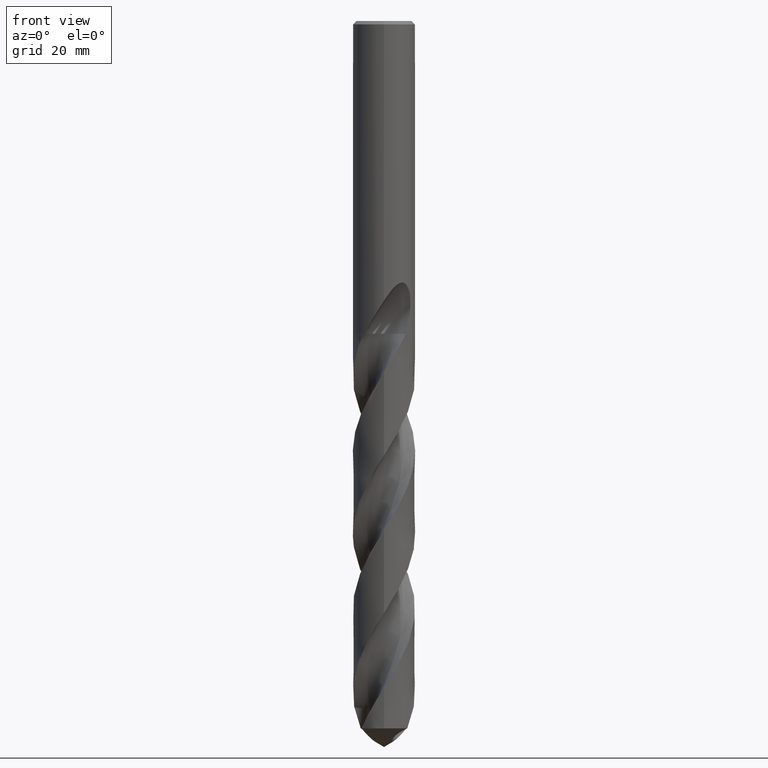
[diagram: clean part render]
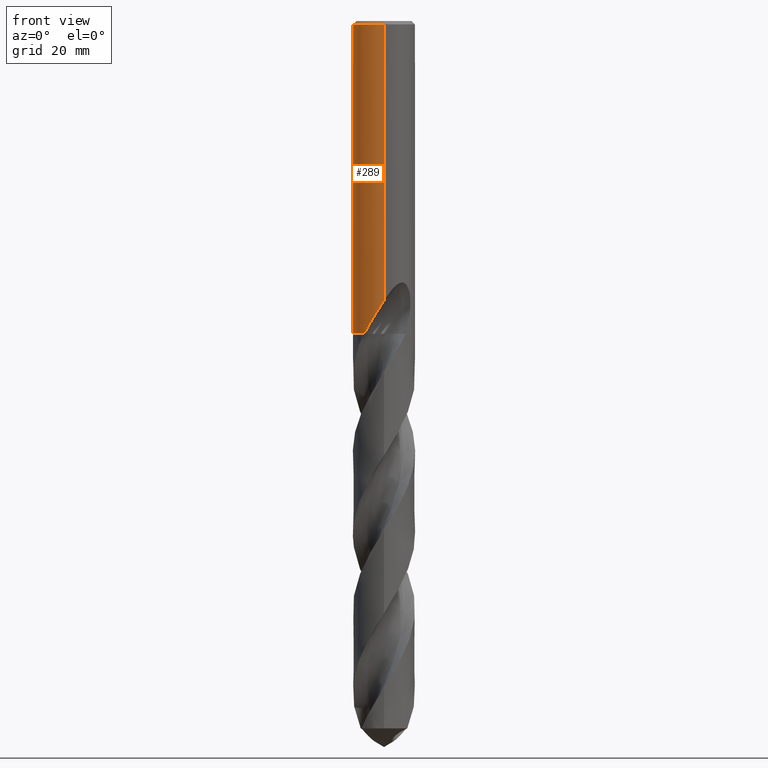
[diagram: same view with one face highlighted and labeled with its STEP entity id]
A machine part, front view. The second image highlights one B-rep face of the part: STEP entity #289.
In plain terms, the highlighted cylindrical surface (edge-blend (fillet) strip) has radius 7.25 mm, axis along (-0, -0, 1).
Its self-contained STEP definition (entity closure, byte-faithful):
#277=EDGE_CURVE('',#559,#427,#755,.T.);
#279=EDGE_CURVE('',#589,#543,#757,.T.);
#285=VERTEX_POINT('',#764);
#289=ADVANCED_FACE('',(#768),#769,.T.);
#299=VERTEX_POINT('',#779);
#307=EDGE_CURVE('',#325,#543,#787,.T.);
#325=VERTEX_POINT('',#807);
#335=VERTEX_POINT('',#817);
#341=EDGE_CURVE('',#607,#549,#823,.T.);
#351=VERTEX_POINT('',#834);
#359=EDGE_CURVE('',#419,#335,#842,.T.);
#377=EDGE_CURVE('',#335,#559,#862,.T.);
#389=VERTEX_POINT('',#876);
#391=EDGE_CURVE('',#589,#607,#878,.T.);
#399=VERTEX_POINT('',#886);
#401=EDGE_CURVE('',#389,#419,#888,.T.);
#419=VERTEX_POINT('',#907);
#427=VERTEX_POINT('',#917);
#453=EDGE_CURVE('',#285,#299,#945,.T.);
#467=EDGE_CURVE('',#427,#399,#961,.T.);
#483=EDGE_CURVE('',#549,#285,#978,.T.);
#531=EDGE_CURVE('',#671,#325,#1032,.T.);
#543=VERTEX_POINT('',#1046);
#549=VERTEX_POINT('',#1052);
#559=VERTEX_POINT('',#1064);
#579=EDGE_CURVE('',#351,#389,#1087,.T.);
#589=VERTEX_POINT('',#1097);
#607=VERTEX_POINT('',#1115);
#663=EDGE_CURVE('',#399,#671,#1177,.T.);
#669=EDGE_CURVE('',#299,#351,#1184,.T.);
#671=VERTEX_POINT('',#1186);
#755=ELLIPSE('',#1300,8.08323113231074,7.25);
#757=CIRCLE('',#1303,7.25);
#764=CARTESIAN_POINT('',(0.0,7.25,-0.799999999999997));
#768=FACE_OUTER_BOUND('',#1341,.T.);
#769=CYLINDRICAL_SURFACE('',#1342,7.25);
#779=CARTESIAN_POINT('',(5.21400732790171E-015,7.25,-46.0232688117743));
#787=B_SPLINE_CURVE_WITH_KNOTS('',3,(#1702,#1703,#1704,#1705),.UNSPECIFIED.,.F.,.F.,(4,4),(0.0,4.16145797138082),.UNSPECIFIED.);
#807=CARTESIAN_POINT('',(-5.89890568393664,4.21490352582595,-68.835043342993));
#817=CARTESIAN_POINT('',(-1.76789376344226E-015,7.25,-46.5000801551881));
#823=LINE('',#1951,#1952);
#834=CARTESIAN_POINT('',(-0.486378944383044,7.23366681030173,-45.6432837483006));
#842=B_SPLINE_CURVE_WITH_KNOTS('',3,(#2120,#2121,#2122,#2123,#2124,#2125,#2126,#2127,#2128,#2129,#2130,#2131,#2132,#2133),.UNSPECIFIED.,.F.,.F.,(4,2,2,2,2,2,4),(3.12598078426012,3.57242219241229,4.01886360056445,4.46530500871661,4.91132129431049,5.35733757990438,5.80451943872426),.UNSPECIFIED.);
#862=LINE('',#2577,#2578);
#876=CARTESIAN_POINT('',(-0.562333990228013,7.22815885848078,-45.3171221986971));
#878=B_SPLINE_CURVE_WITH_KNOTS('',3,(#2601,#2602,#2603,#2604,#2605,#2606,#2607,#2608,#2609,#2610,#2611,#2612,#2613,#2614,#2615,#2616,#2617,#2618,#2619,#2620,#2621,#2622,#2623,#2624,#2625,#2626,#2627,#2628,#2629,#2630),.UNSPECIFIED.,.F.,.F.,(4,2,2,2,2,2,2,2,2,2,2,2,2,2,4),(0.0,3.54844658038938,5.48763761791171,7.24460036638722,9.28608715965889,11.7381097819239,13.8610708390396,14.8239670089668,15.5277714710866,16.1938057539512,17.0387541643148,18.2749855397428,20.0324073018883,21.182137492714,22.3904148931581),.UNSPECIFIED.);
#886=CARTESIAN_POINT('',(8.69674988129566E-017,7.25,-48.0310253601033));
#888=CIRCLE('',#2643,7.25);
#907=CARTESIAN_POINT('',(-1.0350734039088,7.17573153403335,-45.3171221986971));
#917=CARTESIAN_POINT('',(-1.337052752443,7.12564312446144,-47.3720803908795));
#945=LINE('',#3151,#3152);
#961=B_SPLINE_CURVE_WITH_KNOTS('',3,(#3184,#3185,#3186,#3187,#3188,#3189,#3190,#3191,#3192,#3193,#3194,#3195,#3196,#3197,#3198,#3199),.UNSPECIFIED.,.F.,.F.,(4,2,2,2,2,2,2,4),(5.849860461886,6.15776949937088,6.46574711276431,6.77372472615775,7.08170233955119,7.38967995294462,7.69744390712753,8.00520786131043),.UNSPECIFIED.);
#978=CIRCLE('',#3240,7.25);
#1032=B_SPLINE_CURVE_WITH_KNOTS('',3,(#4497,#4498,#4499,#4500,#4501,#4502,#4503,#4504,#4505,#4506,#4507,#4508,#4509,#4510,#4511,#4512,#4513,#4514,#4515,#4516,#4517,#4518,#4519,#4520,#4521,#4522,#4523,#4524,#4525,#4526),.UNSPECIFIED.,.F.,.F.,(4,2,2,2,2,2,2,2,2,2,2,2,2,2,4),(0.0,3.54844658038938,5.48763761791159,7.24460036638689,9.28608715965892,11.7381097819245,13.8610708390407,14.8239670089681,15.5277714710882,16.1938057539532,17.0387541643171,18.2749855397463,20.0324073018938,21.1821374927204,22.3904148931655),.UNSPECIFIED.);
#1046=CARTESIAN_POINT('',(-5.0406308264731,5.21100190665951,-72.8));
#1052=CARTESIAN_POINT('',(8.87839606521224E-016,-7.25,-0.799999999999997));
#1064=CARTESIAN_POINT('',(-3.70594869918881E-015,7.25,-46.7128911336578));
#1087=B_SPLINE_CURVE_WITH_KNOTS('',3,(#5653,#5654,#5655,#5656,#5657,#5658,#5659,#5660,#5661,#5662,#5663,#5664,#5665,#5666,#5667,#5668,#5669,#5670,#5671,#5672,#5673,#5674,#5675,#5676,#5677,#5678,#5679),.UNSPECIFIED.,.F.,.F.,(4,2,3,2,2,2,2,2,2,2,2,2,4),(-0.542005165388285,-0.271002582694143,0.0,0.271002582694142,0.542005165388284,0.813279492373751,1.08455381935922,1.35537592794296,1.6261980365267,1.89715366170137,2.16810928687604,2.4390649120507,2.71002053722537),.UNSPECIFIED.);
#1097=CARTESIAN_POINT('',(-4.617428216597,-5.58944153422986,-72.8));
#1115=CARTESIAN_POINT('',(2.21289636327627E-012,-7.25000000000001,-65.0984235571789));
#1177=LINE('',#6129,#6130);
#1184=B_SPLINE_CURVE_WITH_KNOTS('',3,(#6140,#6141,#6142,#6143,#6144,#6145,#6146,#6147,#6148,#6149,#6150,#6151,#6152,#6153,#6154,#6155,#6156,#6157,#6158,#6159,#6160,#6161,#6162,#6163,#6164,#6165,#6166),.UNSPECIFIED.,.F.,.F.,(4,2,3,2,2,2,2,2,2,2,2,2,4),(-0.542005165388285,-0.271002582694143,0.0,0.271002582694142,0.542005165388284,0.813279492373751,1.08455381935922,1.35537592794296,1.6261980365267,1.89715366170137,2.16810928687604,2.4390649120507,2.71002053722537),.UNSPECIFIED.);
#1186=CARTESIAN_POINT('',(-2.21467272011567E-012,7.25,-65.0984235571789));
#1300=AXIS2_PLACEMENT_3D('',#7116,#7117,#7118);
#1303=AXIS2_PLACEMENT_3D('',#7119,#7120,#7121);
#1341=EDGE_LOOP('',(#7132,#7133,#7134,#7135,#7136,#7137,#7138,#7139,#7140,#7141,#7142,#7143,#7144,#7145,#7146));
#1342=AXIS2_PLACEMENT_3D('',#7147,#7148,#7149);
#1702=CARTESIAN_POINT('',(-5.89890568398927,4.21490352575229,-68.8350433430219));
#1703=CARTESIAN_POINT('',(-5.66546679523584,4.54160945847847,-70.1628091404852));
#1704=CARTESIAN_POINT('',(-5.38417504793869,4.87868969031526,-71.4984422610641));
#1705=CARTESIAN_POINT('',(-5.0406308264731,5.21100190665951,-72.8));
#1951=CARTESIAN_POINT('',(8.87839606521224E-016,-7.25,-61.4));
#1952=VECTOR('',#7195,1.0);
#2120=CARTESIAN_POINT('',(-0.944882962919552,7.18816361711281,-44.8731505021767));
#2121=CARTESIAN_POINT('',(-1.00531916080331,7.18021928981669,-45.0189012482723));
#2122=CARTESIAN_POINT('',(-1.03510901790186,7.17572639675303,-45.1774880580154));
#2123=CARTESIAN_POINT('',(-1.03510901790186,7.17572639675303,-45.4751156634502));
#2124=CARTESIAN_POINT('',(-1.00531916080331,7.18021928981669,-45.6337024731932));
#2125=CARTESIAN_POINT('',(-0.884446765035806,7.19610794440894,-45.9252039653846));
#2126=CARTESIAN_POINT('',(-0.793375351811161,7.20723142525308,-46.0581380380379));
#2127=CARTESIAN_POINT('',(-0.583437843733108,7.22725455224771,-46.2679550453224));
#2128=CARTESIAN_POINT('',(-0.450540548175303,7.2374563815644,-46.3589265208356));
#2129=CARTESIAN_POINT('',(-0.159170906672212,7.24971904851264,-46.4796387136468));
#2130=CARTESIAN_POINT('',(-0.000683380668176969,7.25152417943162,-46.5093686300866));
#2131=CARTESIAN_POINT('',(0.296987327064988,7.24544806039491,-46.5093686300866));
#2132=CARTESIAN_POINT('',(0.455654578620942,7.23714476621408,-46.4794995549297));
#2133=CARTESIAN_POINT('',(0.60138829246746,7.22501433366627,-46.4190267690348));
#2577=CARTESIAN_POINT('',(-8.87839606521224E-016,7.25,-61.4));
#2578=VECTOR('',#7222,1.0);
#2601=CARTESIAN_POINT('',(-4.617428216597,-5.58944153422986,-72.8));
#2602=CARTESIAN_POINT('',(-4.13937635557394,-5.98435936968204,-71.7927468581112));
#2603=CARTESIAN_POINT('',(-3.58992270589019,-6.33531234500395,-70.8534785716));
#2604=CARTESIAN_POINT('',(-2.63184174914676,-6.76562305248206,-69.2841493430898));
#2605=CARTESIAN_POINT('',(-2.28689840390779,-6.88947011461468,-68.7316917466561));
#2606=CARTESIAN_POINT('',(-1.61905154704012,-7.07458095987604,-67.6621426227853));
#2607=CARTESIAN_POINT('',(-1.29911868063879,-7.13998030606446,-67.1500185644935));
#2608=CARTESIAN_POINT('',(-0.606544672567688,-7.234343622989,-66.0461844664534));
#2609=CARTESIAN_POINT('',(-0.228105384609302,-7.25646638886107,-65.4458162058839));
#2610=CARTESIAN_POINT('',(0.612272501000281,-7.23864703704895,-64.1615636660833));
#2611=CARTESIAN_POINT('',(1.11055916340271,-7.1838815834668,-63.4308112036628));
#2612=CARTESIAN_POINT('',(2.07099252469869,-6.96294680603812,-62.2266473719668));
#2613=CARTESIAN_POINT('',(2.6019714726075,-6.79481670233259,-61.6395331549284));
#2614=CARTESIAN_POINT('',(3.40583290236086,-6.40627957200327,-61.0894525441869));
#2615=CARTESIAN_POINT('',(3.67207221721475,-6.25951337217414,-60.9534332505876));
#2616=CARTESIAN_POINT('',(4.13859326847605,-5.95731808566675,-60.8489645813224));
#2617=CARTESIAN_POINT('',(4.32994370364985,-5.81969345909079,-60.8470317208443));
#2618=CARTESIAN_POINT('',(4.68634745228596,-5.53621475879936,-60.9385366267836));
#2619=CARTESIAN_POINT('',(4.84222196941276,-5.39929896628917,-61.0243171863235));
#2620=CARTESIAN_POINT('',(5.15943004938234,-5.09925473934298,-61.2927025840205));
#2621=CARTESIAN_POINT('',(5.30618536998462,-4.94376303626702,-61.4908553788925));
#2622=CARTESIAN_POINT('',(5.60678798656216,-4.60423578391243,-62.0334558650061));
#2623=CARTESIAN_POINT('',(5.75046756064831,-4.41934076066048,-62.4359063512971));
#2624=CARTESIAN_POINT('',(6.02063753840335,-4.04809536876017,-63.5618962990456));
#2625=CARTESIAN_POINT('',(6.11830055663954,-3.88997832031718,-64.3638047521264));
#2626=CARTESIAN_POINT('',(6.16659469416509,-3.81272973140763,-65.847777612086));
#2627=CARTESIAN_POINT('',(6.1552144344166,-3.83159909073805,-66.4386657207588));
#2628=CARTESIAN_POINT('',(6.07491478731915,-3.95774959801274,-67.6378687355709));
#2629=CARTESIAN_POINT('',(6.0032299556517,-4.06889803943182,-68.2416703078091));
#2630=CARTESIAN_POINT('',(5.89890568393663,-4.21490352582595,-68.835043342993));
#2643=AXIS2_PLACEMENT_3D('',#7263,#7264,#7265);
#3151=CARTESIAN_POINT('',(-8.87839606521224E-016,7.25,-61.4));
#3152=VECTOR('',#7340,1.0);
#3184=CARTESIAN_POINT('',(-1.37959567331625,7.11752876904387,-47.3118471321033));
#3185=CARTESIAN_POINT('',(-1.31987953841072,7.12910359001709,-47.400592130849));
#3186=CARTESIAN_POINT('',(-1.25218373916195,7.14141952080462,-47.4820529042455));
#3187=CARTESIAN_POINT('',(-1.10800822315806,7.16520460584611,-47.6262539905264));
#3188=CARTESIAN_POINT('',(-1.02654002413945,7.1775154133935,-47.6939776488091));
#3189=CARTESIAN_POINT('',(-0.849025167976595,7.20067137111179,-47.8134612161857));
#3190=CARTESIAN_POINT('',(-0.752981229844161,7.21149470416405,-47.8652293918837));
#3191=CARTESIAN_POINT('',(-0.552437560095781,7.22962304284126,-47.9484666893911));
#3192=CARTESIAN_POINT('',(-0.447771796720019,7.23692784469342,-47.9800017826115));
#3193=CARTESIAN_POINT('',(-0.237064448289829,7.24689068901932,-48.0214096938983));
#3194=CARTESIAN_POINT('',(-0.131020588262971,7.24954291784748,-48.0312723335086));
#3195=CARTESIAN_POINT('',(0.0742250303791588,7.25034584964577,-48.0312723335086));
#3196=CARTESIAN_POINT('',(0.180215603267349,7.24852614452738,-48.0214231311406));
#3197=CARTESIAN_POINT('',(0.390849889662505,7.24022411913528,-47.9800516221809));
#3198=CARTESIAN_POINT('',(0.495495780910467,7.23374763990943,-47.948539231802));
#3199=CARTESIAN_POINT('',(0.595758662558768,7.22548071867791,-47.9069419872344));
#3240=AXIS2_PLACEMENT_3D('',#7389,#7390,#7391);
#4497=CARTESIAN_POINT('',(4.617428216597,5.58944153422985,-72.8));
#4498=CARTESIAN_POINT('',(4.13937635557394,5.98435936968204,-71.7927468581112));
#4499=CARTESIAN_POINT('',(3.58992270589022,6.33531234500394,-70.8534785716));
#4500=CARTESIAN_POINT('',(2.63184174914677,6.76562305248206,-69.2841493430899));
#4501=CARTESIAN_POINT('',(2.2868984039078,6.88947011461468,-68.7316917466561));
#4502=CARTESIAN_POINT('',(1.61905154704013,7.07458095987604,-67.6621426227853));
#4503=CARTESIAN_POINT('',(1.2991186806388,7.13998030606446,-67.1500185644935));
#4504=CARTESIAN_POINT('',(0.60654467256756,7.23434362298902,-66.0461844664532));
#4505=CARTESIAN_POINT('',(0.228105384609249,7.25646638886106,-65.4458162058838));
#4506=CARTESIAN_POINT('',(-0.612272501000251,7.23864703704895,-64.1615636660833));
#4507=CARTESIAN_POINT('',(-1.11055916340271,7.1838815834668,-63.4308112036627));
#4508=CARTESIAN_POINT('',(-2.07099252469873,6.96294680603811,-62.2266473719667));
#4509=CARTESIAN_POINT('',(-2.60197147260752,6.79481670233258,-61.6395331549284));
#4510=CARTESIAN_POINT('',(-3.40583290236082,6.40627957200328,-61.0894525441869));
#4511=CARTESIAN_POINT('',(-3.67207221721474,6.25951337217414,-60.9534332505875));
#4512=CARTESIAN_POINT('',(-4.13859326847614,5.95731808566669,-60.8489645813224));
#4513=CARTESIAN_POINT('',(-4.3299437036499,5.81969345909075,-60.8470317208443));
#4514=CARTESIAN_POINT('',(-4.68634745228595,5.53621475879937,-60.9385366267836));
#4515=CARTESIAN_POINT('',(-4.84222196941274,5.3992989662892,-61.0243171863234));
#4516=CARTESIAN_POINT('',(-5.15943004938237,5.09925473934296,-61.2927025840205));
#4517=CARTESIAN_POINT('',(-5.30618536998465,4.94376303626699,-61.4908553788926));
#4518=CARTESIAN_POINT('',(-5.60678798656225,4.60423578391233,-62.0334558650063));
#4519=CARTESIAN_POINT('',(-5.75046756064837,4.4193407606604,-62.4359063512974));
#4520=CARTESIAN_POINT('',(-6.02063753840331,4.04809536876025,-63.5618962990454));
#4521=CARTESIAN_POINT('',(-6.11830055663954,3.88997832031718,-64.3638047521261));
#4522=CARTESIAN_POINT('',(-6.1665946941651,3.81272973140762,-65.847777612086));
#4523=CARTESIAN_POINT('',(-6.1552144344166,3.83159909073805,-66.4386657207588));
#4524=CARTESIAN_POINT('',(-6.07491478731916,3.95774959801273,-67.6378687355709));
#4525=CARTESIAN_POINT('',(-6.00322995565171,4.0688980394318,-68.2416703078091));
#4526=CARTESIAN_POINT('',(-5.89890568393664,4.21490352582594,-68.8350433429929));
#5653=CARTESIAN_POINT('',(0.66497797756601,7.21943933344912,-44.8134514375689));
#5654=CARTESIAN_POINT('',(0.728702547670773,7.21356970371856,-44.8772087372233));
#5655=CARTESIAN_POINT('',(0.783982100534131,7.2075817465801,-44.9579643148021));
#5656=CARTESIAN_POINT('',(0.857333655844048,7.19922506783456,-45.1350105458368));
#5657=CARTESIAN_POINT('',(0.875400981188567,7.19695582327237,-45.2313078183554));
#5658=CARTESIAN_POINT('',(0.875400981188567,7.19695582327237,-45.3216420125868));
#5659=CARTESIAN_POINT('',(0.875400981188567,7.19695582327237,-45.4119762068182));
#5660=CARTESIAN_POINT('',(0.857333655844048,7.19922506783456,-45.5082734793367));
#5661=CARTESIAN_POINT('',(0.783982100534131,7.2075817465801,-45.6853197103715));
#5662=CARTESIAN_POINT('',(0.728702547670773,7.21356970371856,-45.7660752879503));
#5663=CARTESIAN_POINT('',(0.601189508482974,7.22531484887402,-45.8936538190565));
#5664=CARTESIAN_POINT('',(0.520401032221552,7.23184306320286,-45.9489915531223));
#5665=CARTESIAN_POINT('',(0.343275103027133,7.24241213467872,-46.022425232181));
#5666=CARTESIAN_POINT('',(0.246930089740288,7.24635785555988,-46.0405166027747));
#5667=CARTESIAN_POINT('',(0.0662733965927272,7.25025911526719,-46.0405166027747));
#5668=CARTESIAN_POINT('',(-0.0300020000666073,7.25047874367655,-46.0224791383375));
#5669=CARTESIAN_POINT('',(-0.20708995414585,7.24758276140915,-45.9491359731574));
#5670=CARTESIAN_POINT('',(-0.287904787319242,7.24456290439615,-45.8938320176603));
#5671=CARTESIAN_POINT('',(-0.41554875845194,7.23836335758329,-45.7662300527366));
#5672=CARTESIAN_POINT('',(-0.470887117358976,7.23478533701256,-45.685405538883));
#5673=CARTESIAN_POINT('',(-0.544287865416768,7.22963375793717,-45.5082726273809));
#5674=CARTESIAN_POINT('',(-0.562348199187247,7.22815775304267,-45.4119605543117));
#5675=CARTESIAN_POINT('',(-0.562348199187247,7.22815775304267,-45.2313234708619));
#5676=CARTESIAN_POINT('',(-0.544287865416768,7.22963375793717,-45.1350113977926));
#5677=CARTESIAN_POINT('',(-0.470887117358976,7.23478533701256,-44.9578784862905));
#5678=CARTESIAN_POINT('',(-0.41554875845194,7.23836335758329,-44.877053972437));
#5679=CARTESIAN_POINT('',(-0.351711044491071,7.24146389490295,-44.8132372667566));
#6129=CARTESIAN_POINT('',(-8.87839606521224E-016,7.25,-61.4));
#6130=VECTOR('',#7604,1.0);
#6140=CARTESIAN_POINT('',(0.66497797756601,7.21943933344912,-44.8134514375689));
#6141=CARTESIAN_POINT('',(0.728702547670773,7.21356970371856,-44.8772087372233));
#6142=CARTESIAN_POINT('',(0.783982100534131,7.2075817465801,-44.9579643148021));
#6143=CARTESIAN_POINT('',(0.857333655844048,7.19922506783456,-45.1350105458368));
#6144=CARTESIAN_POINT('',(0.875400981188567,7.19695582327237,-45.2313078183554));
#6145=CARTESIAN_POINT('',(0.875400981188567,7.19695582327237,-45.3216420125868));
#6146=CARTESIAN_POINT('',(0.875400981188567,7.19695582327237,-45.4119762068182));
#6147=CARTESIAN_POINT('',(0.857333655844048,7.19922506783456,-45.5082734793367));
#6148=CARTESIAN_POINT('',(0.783982100534131,7.2075817465801,-45.6853197103715));
#6149=CARTESIAN_POINT('',(0.728702547670773,7.21356970371856,-45.7660752879503));
#6150=CARTESIAN_POINT('',(0.601189508482974,7.22531484887402,-45.8936538190565));
#6151=CARTESIAN_POINT('',(0.520401032221552,7.23184306320286,-45.9489915531223));
#6152=CARTESIAN_POINT('',(0.343275103027133,7.24241213467872,-46.022425232181));
#6153=CARTESIAN_POINT('',(0.246930089740288,7.24635785555988,-46.0405166027747));
#6154=CARTESIAN_POINT('',(0.0662733965927272,7.25025911526719,-46.0405166027747));
#6155=CARTESIAN_POINT('',(-0.0300020000666073,7.25047874367655,-46.0224791383375));
#6156=CARTESIAN_POINT('',(-0.20708995414585,7.24758276140915,-45.9491359731574));
#6157=CARTESIAN_POINT('',(-0.287904787319242,7.24456290439615,-45.8938320176603));
#6158=CARTESIAN_POINT('',(-0.41554875845194,7.23836335758329,-45.7662300527366));
#6159=CARTESIAN_POINT('',(-0.470887117358976,7.23478533701256,-45.685405538883));
#6160=CARTESIAN_POINT('',(-0.544287865416768,7.22963375793717,-45.5082726273809));
#6161=CARTESIAN_POINT('',(-0.562348199187247,7.22815775304267,-45.4119605543117));
#6162=CARTESIAN_POINT('',(-0.562348199187247,7.22815775304267,-45.2313234708619));
#6163=CARTESIAN_POINT('',(-0.544287865416768,7.22963375793717,-45.1350113977926));
#6164=CARTESIAN_POINT('',(-0.470887117358976,7.23478533701256,-44.9578784862905));
#6165=CARTESIAN_POINT('',(-0.41554875845194,7.23836335758329,-44.877053972437));
#6166=CARTESIAN_POINT('',(-0.351711044491071,7.24146389490295,-44.8132372667566));
#7116=CARTESIAN_POINT('',(0.0,0.0,-46.7128911336578));
#7117=DIRECTION('',(-0.442195774284071,0.0,0.896918556617774));
#7118=DIRECTION('',(0.896918556617774,-0.0,0.442195774284071));
#7119=CARTESIAN_POINT('',(0.0,0.0,-72.8));
#7120=DIRECTION('',(0.0,0.0,-1.0));
#7121=DIRECTION('',(0.0,1.0,0.0));
#7132=ORIENTED_EDGE('',*,*,#453,.T.);
#7133=ORIENTED_EDGE('',*,*,#669,.T.);
#7134=ORIENTED_EDGE('',*,*,#579,.T.);
#7135=ORIENTED_EDGE('',*,*,#401,.T.);
#7136=ORIENTED_EDGE('',*,*,#359,.T.);
#7137=ORIENTED_EDGE('',*,*,#377,.T.);
#7138=ORIENTED_EDGE('',*,*,#277,.T.);
#7139=ORIENTED_EDGE('',*,*,#467,.T.);
#7140=ORIENTED_EDGE('',*,*,#663,.T.);
#7141=ORIENTED_EDGE('',*,*,#531,.T.);
#7142=ORIENTED_EDGE('',*,*,#307,.T.);
#7143=ORIENTED_EDGE('',*,*,#279,.F.);
#7144=ORIENTED_EDGE('',*,*,#391,.T.);
#7145=ORIENTED_EDGE('',*,*,#341,.T.);
#7146=ORIENTED_EDGE('',*,*,#483,.T.);
#7147=CARTESIAN_POINT('',(0.0,0.0,-61.4));
#7148=DIRECTION('',(-0.0,-0.0,1.0));
#7149=DIRECTION('',(0.0,1.0,0.0));
#7195=DIRECTION('',(-0.0,-0.0,1.0));
#7222=DIRECTION('',(0.0,0.0,-1.0));
#7263=CARTESIAN_POINT('',(0.0,0.0,-45.3171221986971));
#7264=DIRECTION('',(0.0,-0.0,1.0));
#7265=DIRECTION('',(0.0,1.0,0.0));
#7340=DIRECTION('',(0.0,0.0,-1.0));
#7389=CARTESIAN_POINT('',(0.0,0.0,-0.799999999999997));
#7390=DIRECTION('',(0.0,0.0,-1.0));
#7391=DIRECTION('',(0.0,1.0,0.0));
#7604=DIRECTION('',(0.0,0.0,-1.0));